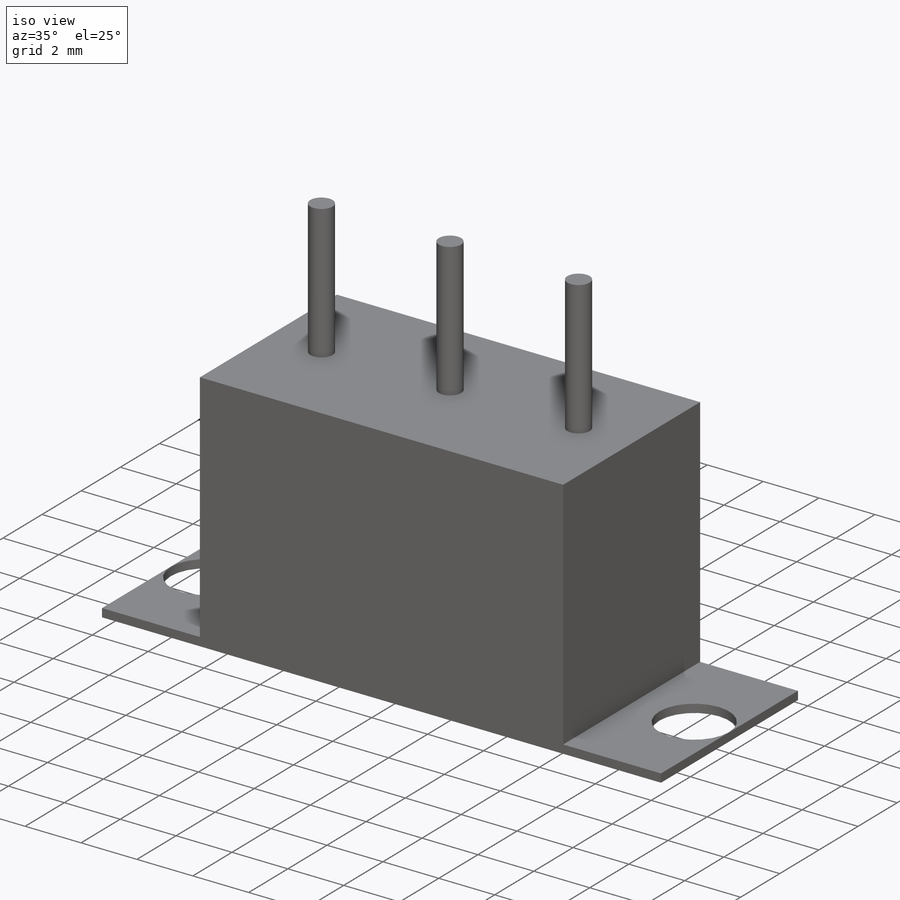
[diagram: iso view]
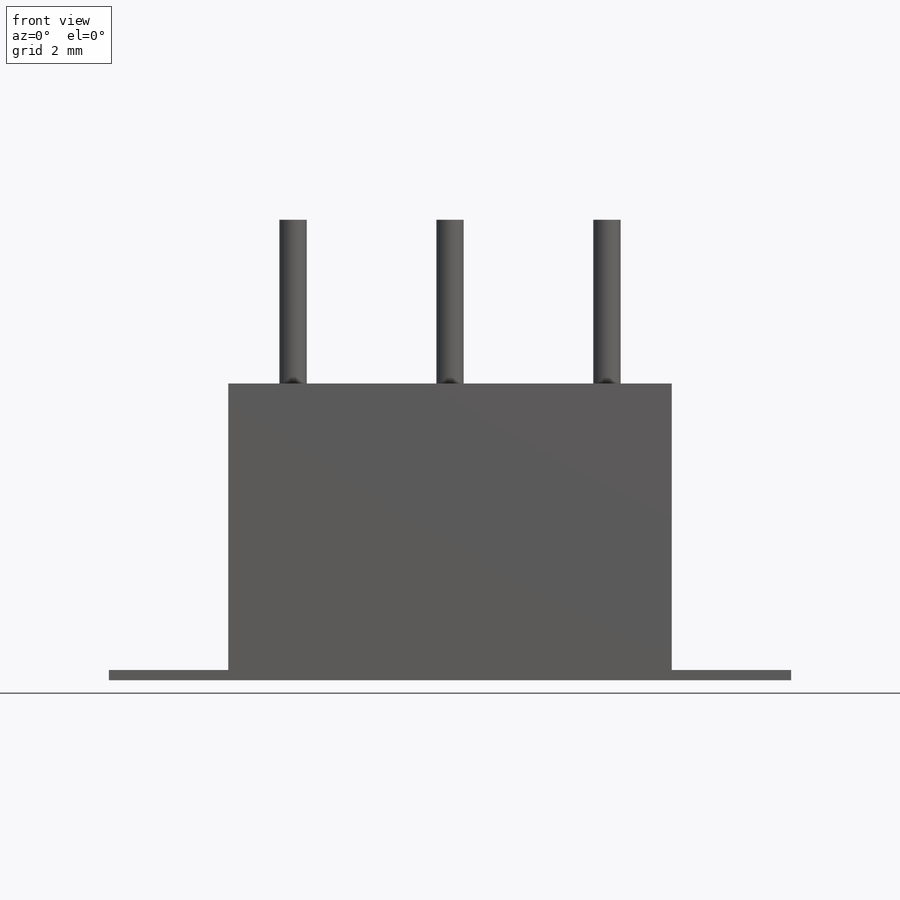
[diagram: front view]
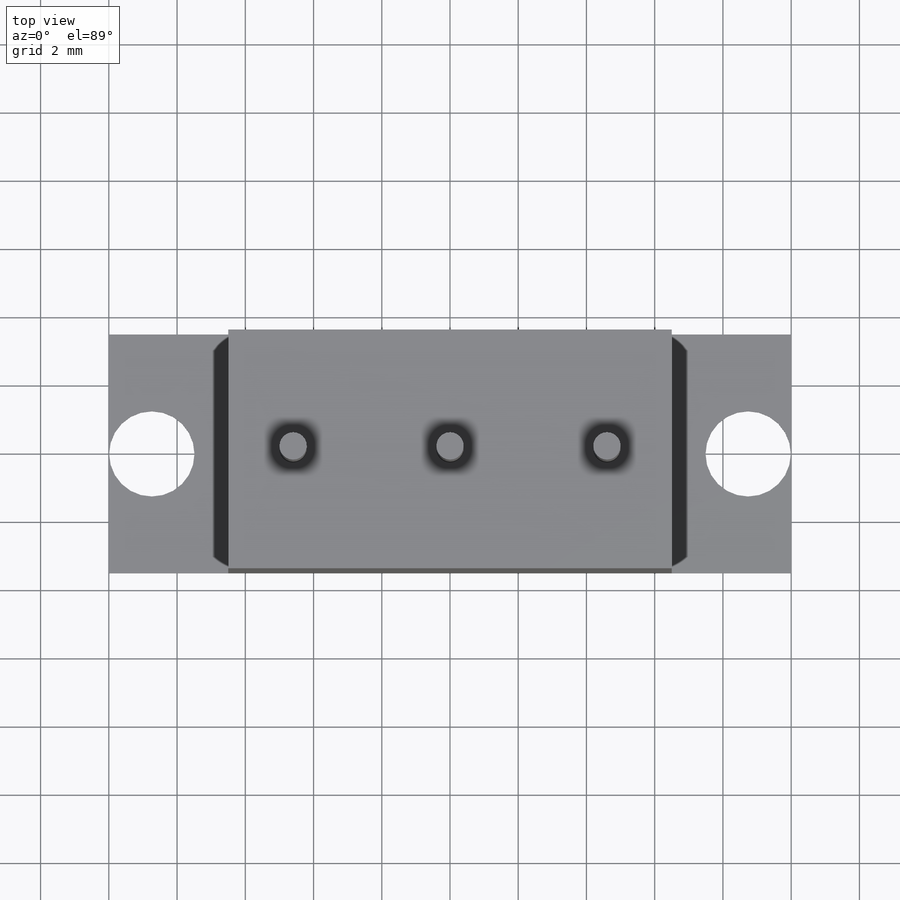
[diagram: top view]
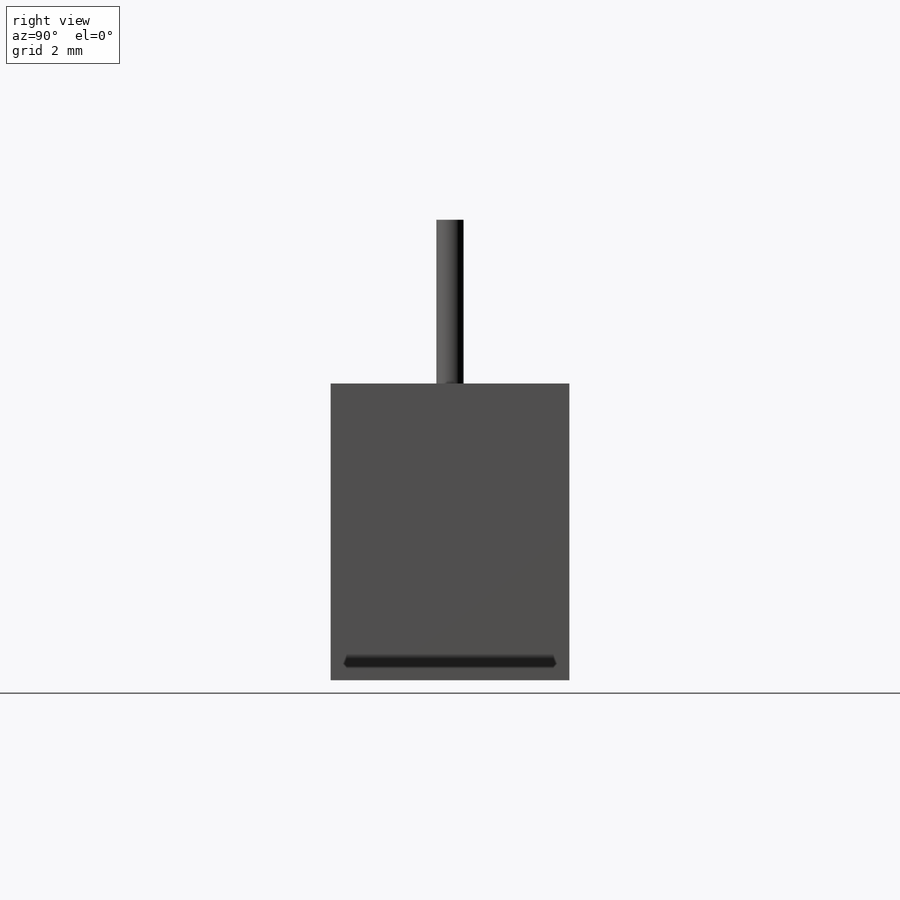
[diagram: right view]
SOLIDWORKS PART (.sldprt)
format: sldprt  version: not decoded by parser v0  size: 166,912 bytes
history: native  units: mm
features: sketch x4, extrude x3, material x1, cut_extrude x1 (+13 scaffold rows collapsed)
feature tree (22):
  scaffold x13  (default folders/planes/origin — collapsed)
  material  "Material <not specified>"
  sketch  "Sketch1"  dims[D1=20.0mm D2=7.0mm]
  extrude  "Boss-Extrude1"  Depth=0.3mm
  sketch  "Sketch2"  dims[D1=7.0mm D2=13.0mm]
  extrude  "Boss-Extrude2"  Depth=8.4mm
  sketch  "Sketch3"  dims[c1.D1=~1.024229mm c1.D2=~1.335913mm c2.D1=1.26mm c2.D2=17.48mm]
  cut_extrude  "Cut-Extrude5"  [1 undecoded]
  sketch  "Sketch4"  dims[D1=4.6mm D2=4.6mm]
  extrude  "Boss-Extrude3"  Depth=4.8mm
decode coverage: 7 of 8 modeling features carry decoded parameters
note: ~ marks probable driven/reference dimensions
note: 1 parameter value undecoded
note: suppression state not decoded; provenance and decode notes live in map.json
